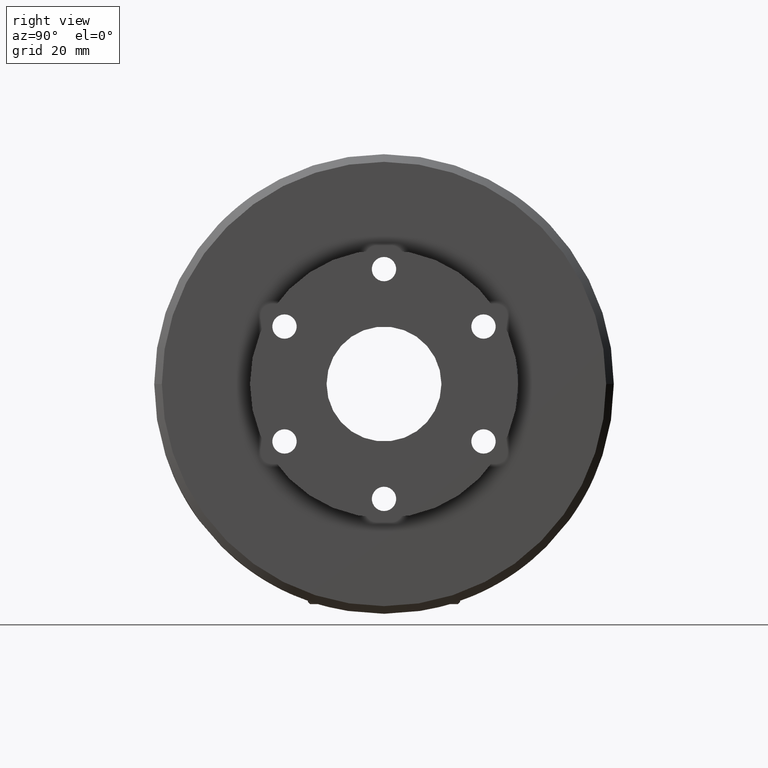
[diagram: clean part render]
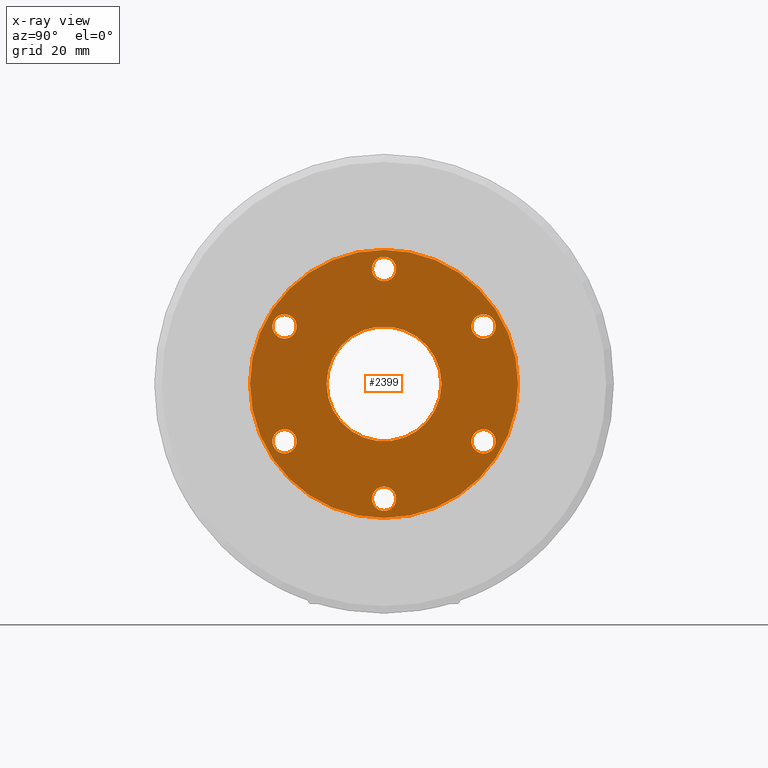
[diagram: x-ray — body ghosted, one internal face saturated and labeled with its STEP entity id]
A machine part, right view, then the same camera in x-ray: the body is ghosted and one INTERNAL B-rep face — a face not visible from any outside direction — is saturated and labeled: STEP entity #2399.
In plain terms, the highlighted planar face has unit normal (1, 0, 0).
Its self-contained STEP definition (entity closure, byte-faithful):
#275 = DIRECTION ( 'NONE',  ( 0.0000000000000000000, 0.0000000000000000000, -1.000000000000000000 ) ) ;
#276 = DIRECTION ( 'NONE',  ( 1.000000000000000000, 0.0000000000000000000, 0.0000000000000000000 ) ) ;
#278 = CARTESIAN_POINT ( 'NONE',  ( -0.002500000000000000100, -4.201462788212306000E-017, 0.0000000000000000000 ) ) ;
#381 = DIRECTION ( 'NONE',  ( -1.000000000000000000, -0.0000000000000000000, -0.0000000000000000000 ) ) ;
#387 = CARTESIAN_POINT ( 'NONE',  ( -0.002500000000000000100, -4.201462788212306000E-017, 0.0000000000000000000 ) ) ;
#397 = CARTESIAN_POINT ( 'NONE',  ( -0.002500000000000041700, 2.326758979145853200E-016, 0.7500000000000001100 ) ) ;
#398 = DIRECTION ( 'NONE',  ( -1.000000000000000000, -0.0000000000000000000, -0.0000000000000000000 ) ) ;
#400 = CARTESIAN_POINT ( 'NONE',  ( -0.002500000000000041700, 0.6495190528383292200, -0.3750000000000000600 ) ) ;
#401 = DIRECTION ( 'NONE',  ( 0.0000000000000000000, 0.0000000000000000000, -1.000000000000000000 ) ) ;
#414 = DIRECTION ( 'NONE',  ( -1.000000000000000000, -0.0000000000000000000, -0.0000000000000000000 ) ) ;
#415 = DIRECTION ( 'NONE',  ( 0.0000000000000000000, 0.0000000000000000000, -1.000000000000000000 ) ) ;
#450 = CARTESIAN_POINT ( 'NONE',  ( -0.002500000000000041700, 0.6495190528383292200, 0.3750000000000000600 ) ) ;
#462 = CARTESIAN_POINT ( 'NONE',  ( -0.002500000000000000100, -4.201462788212306000E-017, 0.0000000000000000000 ) ) ;
#484 = CARTESIAN_POINT ( 'NONE',  ( -0.002500000000000041700, 2.326758979145853200E-016, -0.7500000000000001100 ) ) ;
#485 = CARTESIAN_POINT ( 'NONE',  ( -0.002500000000000041700, 2.326758979145853200E-016, -0.7500000000000001100 ) ) ;
#489 = DIRECTION ( 'NONE',  ( 1.000000000000000000, 0.0000000000000000000, 0.0000000000000000000 ) ) ;
#493 = DIRECTION ( 'NONE',  ( -1.000000000000000000, -0.0000000000000000000, -0.0000000000000000000 ) ) ;
#499 = CARTESIAN_POINT ( 'NONE',  ( -0.002500000000000041700, -0.6495190528383287800, 0.3750000000000000600 ) ) ;
#506 = DIRECTION ( 'NONE',  ( 0.0000000000000000000, 0.0000000000000000000, -1.000000000000000000 ) ) ;
#519 = DIRECTION ( 'NONE',  ( -1.000000000000000000, -0.0000000000000000000, -0.0000000000000000000 ) ) ;
#577 = DIRECTION ( 'NONE',  ( 0.0000000000000000000, 0.0000000000000000000, -1.000000000000000000 ) ) ;
#589 = DIRECTION ( 'NONE',  ( 0.0000000000000000000, 0.0000000000000000000, -1.000000000000000000 ) ) ;
#656 = CARTESIAN_POINT ( 'NONE',  ( -0.002500000000000041700, 0.6495190528383292200, 0.3750000000000000600 ) ) ;
#674 = DIRECTION ( 'NONE',  ( 0.0000000000000000000, 0.0000000000000000000, -1.000000000000000000 ) ) ;
#694 = DIRECTION ( 'NONE',  ( 0.0000000000000000000, 0.0000000000000000000, -1.000000000000000000 ) ) ;
#718 = DIRECTION ( 'NONE',  ( 0.0000000000000000000, 0.0000000000000000000, -1.000000000000000000 ) ) ;
#721 = DIRECTION ( 'NONE',  ( -1.000000000000000000, -0.0000000000000000000, -0.0000000000000000000 ) ) ;
#733 = DIRECTION ( 'NONE',  ( 1.000000000000000000, 0.0000000000000000000, 0.0000000000000000000 ) ) ;
#740 = CARTESIAN_POINT ( 'NONE',  ( -0.002500000000000041700, -0.6495190528383287800, -0.3750000000000000600 ) ) ;
#799 = DIRECTION ( 'NONE',  ( -1.000000000000000000, -0.0000000000000000000, -0.0000000000000000000 ) ) ;
#823 = DIRECTION ( 'NONE',  ( 0.0000000000000000000, 0.0000000000000000000, -1.000000000000000000 ) ) ;
#879 = CARTESIAN_POINT ( 'NONE',  ( -0.002500000000000000100, 0.3749999999999999400, 0.0000000000000000000 ) ) ;
#974 = VERTEX_POINT ( 'NONE', #879 ) ;
#1038 = CARTESIAN_POINT ( 'NONE',  ( -0.002500000000000000100, 6.514196704327030500E-017, 0.8749999999999996700 ) ) ;
#1039 = CARTESIAN_POINT ( 'NONE',  ( -0.002500000000000000100, -4.201462788212306000E-017, -0.8749999999999996700 ) ) ;
#1126 = CARTESIAN_POINT ( 'NONE',  ( -0.002500000000000041700, 2.326758979145853200E-016, -0.8294999999999996800 ) ) ;
#1162 = CARTESIAN_POINT ( 'NONE',  ( -0.002500000000000041700, 2.424118399678067300E-016, 0.8294999999999996800 ) ) ;
#1164 = CARTESIAN_POINT ( 'NONE',  ( -0.002500000000000041700, 2.326758979145853200E-016, 0.6705000000000004300 ) ) ;
#1167 = CARTESIAN_POINT ( 'NONE',  ( -0.002500000000000041700, 0.6495190528383292200, -0.2955000000000003700 ) ) ;
#1168 = CARTESIAN_POINT ( 'NONE',  ( -0.002500000000000041700, 0.6495190528383292200, -0.4544999999999996800 ) ) ;
#1171 = CARTESIAN_POINT ( 'NONE',  ( -0.002500000000000041700, -0.6495190528383287800, -0.2955000000000004300 ) ) ;
#1172 = CARTESIAN_POINT ( 'NONE',  ( -0.002500000000000041700, -0.6495190528383287800, -0.4544999999999996300 ) ) ;
#1178 = CARTESIAN_POINT ( 'NONE',  ( -0.002500000000000041700, -0.6495190528383287800, 0.4544999999999996300 ) ) ;
#1181 = CARTESIAN_POINT ( 'NONE',  ( -0.002500000000000041700, -0.6495190528383287800, 0.2955000000000004300 ) ) ;
#1184 = CARTESIAN_POINT ( 'NONE',  ( -0.002500000000000041700, 2.424118399678067300E-016, -0.6705000000000004300 ) ) ;
#1189 = CARTESIAN_POINT ( 'NONE',  ( -0.002500000000000041700, 0.6495190528383292200, 0.4544999999999996800 ) ) ;
#1190 = CARTESIAN_POINT ( 'NONE',  ( -0.002500000000000041700, 0.6495190528383292200, 0.2955000000000003700 ) ) ;
#1194 = CARTESIAN_POINT ( 'NONE',  ( -0.002500000000000000100, -0.3750000000000001100, 4.592425496802576100E-017 ) ) ;
#1199 = VERTEX_POINT ( 'NONE', #1194 ) ;
#1202 = VERTEX_POINT ( 'NONE', #1190 ) ;
#1203 = VERTEX_POINT ( 'NONE', #1189 ) ;
#1206 = VERTEX_POINT ( 'NONE', #1184 ) ;
#1209 = VERTEX_POINT ( 'NONE', #1181 ) ;
#1210 = VERTEX_POINT ( 'NONE', #1178 ) ;
#1214 = VERTEX_POINT ( 'NONE', #1172 ) ;
#1215 = VERTEX_POINT ( 'NONE', #1171 ) ;
#1219 = VERTEX_POINT ( 'NONE', #1168 ) ;
#1220 = VERTEX_POINT ( 'NONE', #1167 ) ;
#1224 = VERTEX_POINT ( 'NONE', #1164 ) ;
#1225 = VERTEX_POINT ( 'NONE', #1162 ) ;
#1257 = VERTEX_POINT ( 'NONE', #1126 ) ;
#1336 = VERTEX_POINT ( 'NONE', #1039 ) ;
#1337 = VERTEX_POINT ( 'NONE', #1038 ) ;
#1783 = EDGE_CURVE ( 'NONE', #1337, #1336, #2719, .T. ) ;
#1865 = EDGE_CURVE ( 'NONE', #1214, #1215, #3075, .T. ) ;
#1875 = EDGE_CURVE ( 'NONE', #1219, #1220, #3086, .T. ) ;
#1876 = EDGE_CURVE ( 'NONE', #1224, #1225, #3088, .T. ) ;
#1880 = EDGE_CURVE ( 'NONE', #1209, #1210, #3094, .T. ) ;
#1884 = EDGE_CURVE ( 'NONE', #1257, #1206, #3100, .T. ) ;
#1888 = EDGE_CURVE ( 'NONE', #1202, #1203, #3106, .T. ) ;
#1892 = EDGE_CURVE ( 'NONE', #1199, #974, #3112, .T. ) ;
#1905 = EDGE_CURVE ( 'NONE', #974, #1199, #3127, .T. ) ;
#1910 = EDGE_CURVE ( 'NONE', #1203, #1202, #3131, .T. ) ;
#1912 = EDGE_CURVE ( 'NONE', #1206, #1257, #3133, .T. ) ;
#1914 = EDGE_CURVE ( 'NONE', #1210, #1209, #3135, .T. ) ;
#1916 = EDGE_CURVE ( 'NONE', #1215, #1214, #3137, .T. ) ;
#1918 = EDGE_CURVE ( 'NONE', #1220, #1219, #3139, .T. ) ;
#1920 = EDGE_CURVE ( 'NONE', #1225, #1224, #3140, .T. ) ;
#1959 = EDGE_CURVE ( 'NONE', #1336, #1337, #3169, .T. ) ;
#2272 = ORIENTED_EDGE ( 'NONE', *, *, #1884, .T. ) ;
#2273 = ORIENTED_EDGE ( 'NONE', *, *, #1912, .T. ) ;
#2274 = ORIENTED_EDGE ( 'NONE', *, *, #1865, .T. ) ;
#2275 = ORIENTED_EDGE ( 'NONE', *, *, #1916, .T. ) ;
#2276 = ORIENTED_EDGE ( 'NONE', *, *, #1876, .T. ) ;
#2277 = ORIENTED_EDGE ( 'NONE', *, *, #1920, .T. ) ;
#2278 = ORIENTED_EDGE ( 'NONE', *, *, #1905, .F. ) ;
#2279 = ORIENTED_EDGE ( 'NONE', *, *, #1892, .F. ) ;
#2280 = ORIENTED_EDGE ( 'NONE', *, *, #1959, .T. ) ;
#2281 = ORIENTED_EDGE ( 'NONE', *, *, #1783, .T. ) ;
#2282 = ORIENTED_EDGE ( 'NONE', *, *, #1875, .T. ) ;
#2283 = ORIENTED_EDGE ( 'NONE', *, *, #1918, .T. ) ;
#2284 = ORIENTED_EDGE ( 'NONE', *, *, #1880, .T. ) ;
#2285 = ORIENTED_EDGE ( 'NONE', *, *, #1914, .T. ) ;
#2286 = ORIENTED_EDGE ( 'NONE', *, *, #1888, .T. ) ;
#2287 = ORIENTED_EDGE ( 'NONE', *, *, #1910, .T. ) ;
#2399 = ADVANCED_FACE ( 'NONE', ( #3286, #3292, #3300, #3302, #3297, #3294, #3299, #3301 ), #4048, .T. ) ;
#2719 = CIRCLE ( 'NONE', #2825, 0.8749999999999996700 ) ;
#2825 = AXIS2_PLACEMENT_3D ( 'NONE', #278, #276, #275 ) ;
#2843 = AXIS2_PLACEMENT_3D ( 'NONE', #397, #414, #415 ) ;
#2851 = AXIS2_PLACEMENT_3D ( 'NONE', #740, #721, #718 ) ;
#2853 = AXIS2_PLACEMENT_3D ( 'NONE', #499, #519, #506 ) ;
#2855 = AXIS2_PLACEMENT_3D ( 'NONE', #400, #398, #401 ) ;
#2858 = AXIS2_PLACEMENT_3D ( 'NONE', #485, #493, #577 ) ;
#2860 = AXIS2_PLACEMENT_3D ( 'NONE', #450, #799, #589 ) ;
#2862 = AXIS2_PLACEMENT_3D ( 'NONE', #387, #733, #674 ) ;
#2867 = AXIS2_PLACEMENT_3D ( 'NONE', #462, #489, #694 ) ;
#2872 = AXIS2_PLACEMENT_3D ( 'NONE', #656, #381, #823 ) ;
#2874 = AXIS2_PLACEMENT_3D ( 'NONE', #484, #3472, #3471 ) ;
#2876 = AXIS2_PLACEMENT_3D ( 'NONE', #3402, #3454, #3453 ) ;
#2878 = AXIS2_PLACEMENT_3D ( 'NONE', #3458, #3414, #3473 ) ;
#2880 = AXIS2_PLACEMENT_3D ( 'NONE', #3417, #3464, #3463 ) ;
#2882 = AXIS2_PLACEMENT_3D ( 'NONE', #3423, #3422, #3421 ) ;
#2910 = AXIS2_PLACEMENT_3D ( 'NONE', #3841, #3848, #3849 ) ;
#2957 = AXIS2_PLACEMENT_3D ( 'NONE', #4038, #4049, #4050 ) ;
#3075 = CIRCLE ( 'NONE', #2851, 0.07949999999999958500 ) ;
#3086 = CIRCLE ( 'NONE', #2855, 0.07949999999999965400 ) ;
#3088 = CIRCLE ( 'NONE', #2843, 0.07949999999999965400 ) ;
#3094 = CIRCLE ( 'NONE', #2853, 0.07949999999999958500 ) ;
#3100 = CIRCLE ( 'NONE', #2858, 0.07949999999999965400 ) ;
#3106 = CIRCLE ( 'NONE', #2860, 0.07949999999999965400 ) ;
#3112 = CIRCLE ( 'NONE', #2862, 0.3750000000000000600 ) ;
#3127 = CIRCLE ( 'NONE', #2867, 0.3750000000000000600 ) ;
#3131 = CIRCLE ( 'NONE', #2872, 0.07949999999999965400 ) ;
#3133 = CIRCLE ( 'NONE', #2874, 0.07949999999999965400 ) ;
#3135 = CIRCLE ( 'NONE', #2876, 0.07949999999999958500 ) ;
#3137 = CIRCLE ( 'NONE', #2878, 0.07949999999999958500 ) ;
#3139 = CIRCLE ( 'NONE', #2880, 0.07949999999999965400 ) ;
#3140 = CIRCLE ( 'NONE', #2882, 0.07949999999999965400 ) ;
#3169 = CIRCLE ( 'NONE', #2910, 0.8749999999999996700 ) ;
#3286 = FACE_BOUND ( 'NONE', #3519, .T. ) ;
#3292 = FACE_BOUND ( 'NONE', #3522, .T. ) ;
#3294 = FACE_BOUND ( 'NONE', #3526, .T. ) ;
#3297 = FACE_OUTER_BOUND ( 'NONE', #3525, .T. ) ;
#3299 = FACE_BOUND ( 'NONE', #3527, .T. ) ;
#3300 = FACE_BOUND ( 'NONE', #3523, .T. ) ;
#3301 = FACE_BOUND ( 'NONE', #3528, .T. ) ;
#3302 = FACE_BOUND ( 'NONE', #3524, .T. ) ;
#3402 = CARTESIAN_POINT ( 'NONE',  ( -0.002500000000000041700, -0.6495190528383287800, 0.3750000000000000600 ) ) ;
#3414 = DIRECTION ( 'NONE',  ( -1.000000000000000000, -0.0000000000000000000, -0.0000000000000000000 ) ) ;
#3417 = CARTESIAN_POINT ( 'NONE',  ( -0.002500000000000041700, 0.6495190528383292200, -0.3750000000000000600 ) ) ;
#3421 = DIRECTION ( 'NONE',  ( 0.0000000000000000000, 0.0000000000000000000, -1.000000000000000000 ) ) ;
#3422 = DIRECTION ( 'NONE',  ( -1.000000000000000000, -0.0000000000000000000, -0.0000000000000000000 ) ) ;
#3423 = CARTESIAN_POINT ( 'NONE',  ( -0.002500000000000041700, 2.326758979145853200E-016, 0.7500000000000001100 ) ) ;
#3453 = DIRECTION ( 'NONE',  ( 0.0000000000000000000, 0.0000000000000000000, -1.000000000000000000 ) ) ;
#3454 = DIRECTION ( 'NONE',  ( -1.000000000000000000, -0.0000000000000000000, -0.0000000000000000000 ) ) ;
#3458 = CARTESIAN_POINT ( 'NONE',  ( -0.002500000000000041700, -0.6495190528383287800, -0.3750000000000000600 ) ) ;
#3463 = DIRECTION ( 'NONE',  ( 0.0000000000000000000, 0.0000000000000000000, -1.000000000000000000 ) ) ;
#3464 = DIRECTION ( 'NONE',  ( -1.000000000000000000, -0.0000000000000000000, -0.0000000000000000000 ) ) ;
#3471 = DIRECTION ( 'NONE',  ( 0.0000000000000000000, 0.0000000000000000000, -1.000000000000000000 ) ) ;
#3472 = DIRECTION ( 'NONE',  ( -1.000000000000000000, -0.0000000000000000000, -0.0000000000000000000 ) ) ;
#3473 = DIRECTION ( 'NONE',  ( 0.0000000000000000000, 0.0000000000000000000, -1.000000000000000000 ) ) ;
#3519 = EDGE_LOOP ( 'NONE', ( #2272, #2273 ) ) ;
#3522 = EDGE_LOOP ( 'NONE', ( #2274, #2275 ) ) ;
#3523 = EDGE_LOOP ( 'NONE', ( #2276, #2277 ) ) ;
#3524 = EDGE_LOOP ( 'NONE', ( #2278, #2279 ) ) ;
#3525 = EDGE_LOOP ( 'NONE', ( #2280, #2281 ) ) ;
#3526 = EDGE_LOOP ( 'NONE', ( #2282, #2283 ) ) ;
#3527 = EDGE_LOOP ( 'NONE', ( #2284, #2285 ) ) ;
#3528 = EDGE_LOOP ( 'NONE', ( #2286, #2287 ) ) ;
#3841 = CARTESIAN_POINT ( 'NONE',  ( -0.002500000000000000100, -4.201462788212306000E-017, 0.0000000000000000000 ) ) ;
#3848 = DIRECTION ( 'NONE',  ( 1.000000000000000000, 0.0000000000000000000, 0.0000000000000000000 ) ) ;
#3849 = DIRECTION ( 'NONE',  ( 0.0000000000000000000, 0.0000000000000000000, -1.000000000000000000 ) ) ;
#4038 = CARTESIAN_POINT ( 'NONE',  ( -0.002500000000000000100, -4.201462788212306000E-017, 0.0000000000000000000 ) ) ;
#4048 = PLANE ( 'NONE',  #2957 ) ;
#4049 = DIRECTION ( 'NONE',  ( 1.000000000000000000, 0.0000000000000000000, 0.0000000000000000000 ) ) ;
#4050 = DIRECTION ( 'NONE',  ( 0.0000000000000000000, 0.0000000000000000000, -1.000000000000000000 ) ) ;